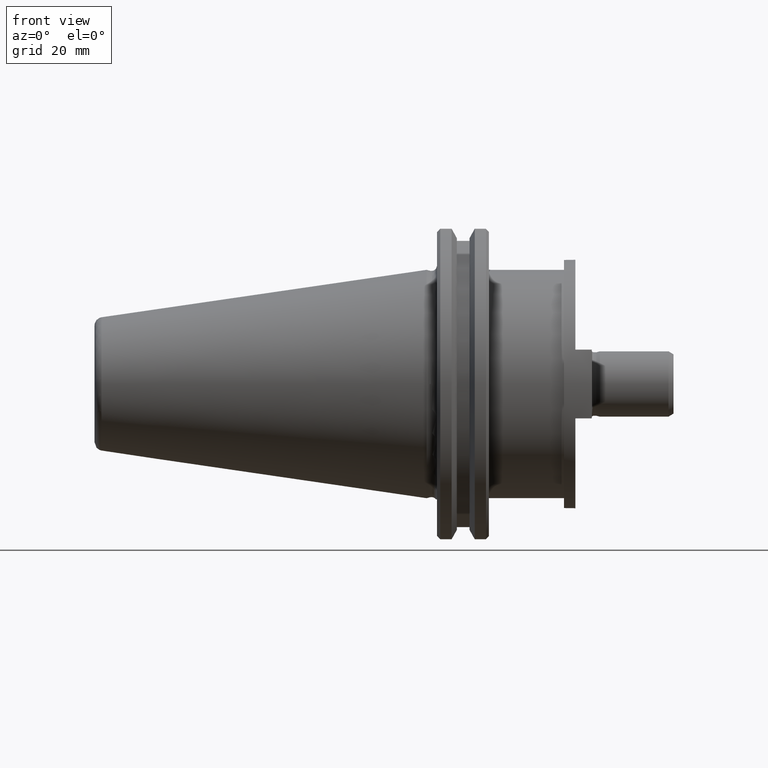
[diagram: clean part render]
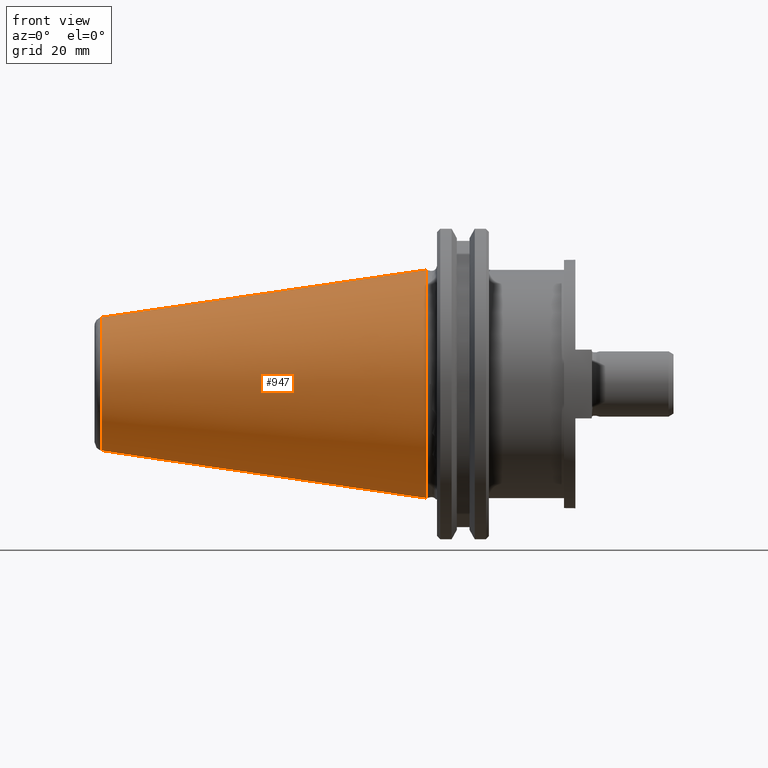
[diagram: same view with one face highlighted and labeled with its STEP entity id]
A machine part, front view. The second image highlights one B-rep face of the part: STEP entity #947.
In plain terms, the highlighted conical surface has half-angle 8.297 deg.
Its self-contained STEP definition (entity closure, byte-faithful):
#47=CONICAL_SURFACE('',#1054,27.67265681028,0.144812411498922);
#75=FACE_OUTER_BOUND('',#135,.T.);
#135=EDGE_LOOP('',(#729,#730,#731,#732,#733,#734));
#208=CIRCLE('',#1052,34.925);
#209=CIRCLE('',#1053,34.925);
#210=CIRCLE('',#1055,20.42031362057);
#211=CIRCLE('',#1056,20.42031362057);
#283=LINE('',#1613,#344);
#344=VECTOR('',#1264,27.67265681028);
#427=VERTEX_POINT('',#1606);
#428=VERTEX_POINT('',#1607);
#429=VERTEX_POINT('',#1612);
#430=VERTEX_POINT('',#1614);
#538=EDGE_CURVE('',#427,#428,#208,.T.);
#540=EDGE_CURVE('',#428,#427,#209,.T.);
#541=EDGE_CURVE('',#427,#429,#283,.T.);
#542=EDGE_CURVE('',#430,#429,#210,.T.);
#543=EDGE_CURVE('',#429,#430,#211,.T.);
#729=ORIENTED_EDGE('',*,*,#538,.F.);
#730=ORIENTED_EDGE('',*,*,#541,.T.);
#731=ORIENTED_EDGE('',*,*,#542,.F.);
#732=ORIENTED_EDGE('',*,*,#543,.F.);
#733=ORIENTED_EDGE('',*,*,#541,.F.);
#734=ORIENTED_EDGE('',*,*,#540,.F.);
#947=ADVANCED_FACE('',(#75),#47,.T.);
#1052=AXIS2_PLACEMENT_3D('',#1608,#1257,#1258);
#1053=AXIS2_PLACEMENT_3D('',#1610,#1260,#1261);
#1054=AXIS2_PLACEMENT_3D('',#1611,#1262,#1263);
#1055=AXIS2_PLACEMENT_3D('',#1615,#1265,#1266);
#1056=AXIS2_PLACEMENT_3D('',#1616,#1267,#1268);
#1257=DIRECTION('center_axis',(1.,0.,0.));
#1258=DIRECTION('ref_axis',(0.,0.,-1.));
#1260=DIRECTION('center_axis',(1.,0.,0.));
#1261=DIRECTION('ref_axis',(0.,0.,-1.));
#1262=DIRECTION('center_axis',(1.,0.,0.));
#1263=DIRECTION('ref_axis',(0.,0.,-1.));
#1264=DIRECTION('',(-0.98953299358046,1.76724869581176E-17,-0.144306807239621));
#1265=DIRECTION('center_axis',(-1.,0.,0.));
#1266=DIRECTION('ref_axis',(0.,0.,-1.));
#1267=DIRECTION('center_axis',(-1.,0.,0.));
#1268=DIRECTION('ref_axis',(0.,0.,-1.));
#1606=CARTESIAN_POINT('',(9.947598300641E-14,0.,34.925));
#1607=CARTESIAN_POINT('',(3.99194566291783E-13,-4.27707894602227E-15,-34.9250000000012));
#1608=CARTESIAN_POINT('Origin',(8.526512829121E-14,0.,0.));
#1610=CARTESIAN_POINT('Origin',(8.526512829121E-14,0.,0.));
#1611=CARTESIAN_POINT('Origin',(-49.73038350905,0.,0.));
#1612=CARTESIAN_POINT('',(-99.4607670180991,-2.50076717130085E-15,20.4203136205638));
#1613=CARTESIAN_POINT('',(-49.73038350905,-3.38892305866126E-15,27.67265681028));
#1614=CARTESIAN_POINT('',(-99.4607670181,20.42031362057,2.50076717130162E-15));
#1615=CARTESIAN_POINT('Origin',(-99.4607670181,0.,0.));
#1616=CARTESIAN_POINT('Origin',(-99.4607670181,0.,0.));